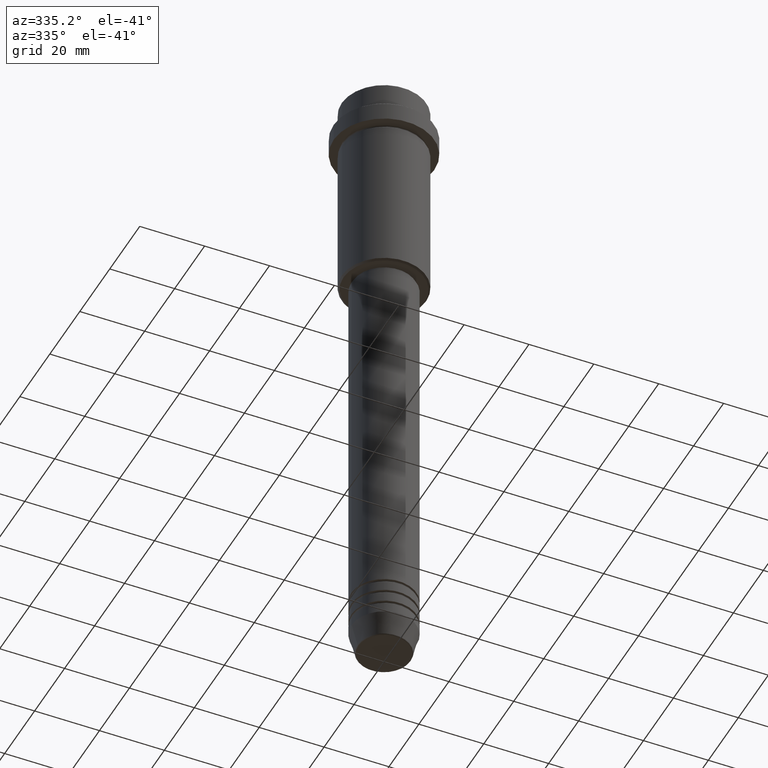
[diagram: clean part render]
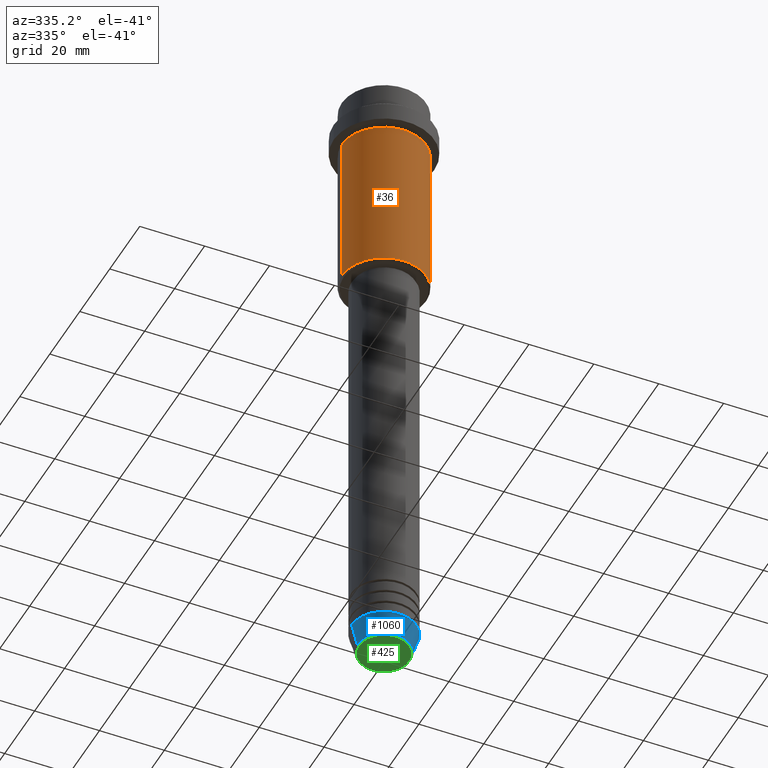
[diagram: same view with three faces highlighted in distinct colors, each labeled with its STEP entity id]
A machine part, auxiliary view with three faces highlighted in distinct colors.
Their STEP definitions:

[orange] entity #36 — the highlighted cylindrical surface (partial cylindrical patch) has radius 13 mm, axis along (-0, -0, 1).
#36 = ADVANCED_FACE ( 'NONE', ( #59 ), #940, .T. ) ;
#42 = EDGE_CURVE ( 'NONE', #437, #111, #584, .T. ) ;
#59 = FACE_OUTER_BOUND ( 'NONE', #1183, .T. ) ;
#111 = VERTEX_POINT ( 'NONE', #1099 ) ;
#112 = CARTESIAN_POINT ( 'NONE',  ( -13.00000000000000000, 1.592040838891559095E-15, 0.000000000000000000 ) ) ;
#156 = EDGE_CURVE ( 'NONE', #617, #437, #1175, .T. ) ;
#172 = CARTESIAN_POINT ( 'NONE',  ( -13.00000000000000000, 1.592040838891559095E-15, -64.50000000000002842 ) ) ;
#174 = CARTESIAN_POINT ( 'NONE',  ( 13.00000000000000000, 0.000000000000000000, 0.000000000000000000 ) ) ;
#281 = CARTESIAN_POINT ( 'NONE',  ( 13.00000000000000000, 0.000000000000000000, -64.50000000000002842 ) ) ;
#379 = VECTOR ( 'NONE', #1082, 1000.000000000000000 ) ;
#394 = DIRECTION ( 'NONE',  ( 1.000000000000000000, 0.000000000000000000, 0.000000000000000000 ) ) ;
#437 = VERTEX_POINT ( 'NONE', #1259 ) ;
#471 = VECTOR ( 'NONE', #1145, 1000.000000000000000 ) ;
#486 = DIRECTION ( 'NONE',  ( -0.000000000000000000, -0.000000000000000000, 1.000000000000000000 ) ) ;
#552 = ORIENTED_EDGE ( 'NONE', *, *, #156, .F. ) ;
#584 = CIRCLE ( 'NONE', #677, 13.00000000000000000 ) ;
#617 = VERTEX_POINT ( 'NONE', #172 ) ;
#677 = AXIS2_PLACEMENT_3D ( 'NONE', #1256, #928, #394 ) ;
#679 = EDGE_CURVE ( 'NONE', #617, #1105, #743, .T. ) ;
#743 = CIRCLE ( 'NONE', #1070, 13.00000000000000000 ) ;
#752 = ORIENTED_EDGE ( 'NONE', *, *, #1150, .T. ) ;
#791 = AXIS2_PLACEMENT_3D ( 'NONE', #1375, #486, #1169 ) ;
#813 = ORIENTED_EDGE ( 'NONE', *, *, #42, .F. ) ;
#883 = ORIENTED_EDGE ( 'NONE', *, *, #679, .T. ) ;
#928 = DIRECTION ( 'NONE',  ( -0.000000000000000000, -0.000000000000000000, 1.000000000000000000 ) ) ;
#940 = CYLINDRICAL_SURFACE ( 'NONE', #791, 13.00000000000000000 ) ;
#1063 = LINE ( 'NONE', #174, #471 ) ;
#1070 = AXIS2_PLACEMENT_3D ( 'NONE', #1383, #1377, #1153 ) ;
#1082 = DIRECTION ( 'NONE',  ( -0.000000000000000000, -0.000000000000000000, 1.000000000000000000 ) ) ;
#1099 = CARTESIAN_POINT ( 'NONE',  ( 13.00000000000000000, 0.000000000000000000, -16.00000000000000000 ) ) ;
#1105 = VERTEX_POINT ( 'NONE', #281 ) ;
#1145 = DIRECTION ( 'NONE',  ( -0.000000000000000000, -0.000000000000000000, 1.000000000000000000 ) ) ;
#1150 = EDGE_CURVE ( 'NONE', #1105, #111, #1063, .T. ) ;
#1153 = DIRECTION ( 'NONE',  ( -1.000000000000000000, 0.000000000000000000, 0.000000000000000000 ) ) ;
#1169 = DIRECTION ( 'NONE',  ( 1.000000000000000000, 0.000000000000000000, 0.000000000000000000 ) ) ;
#1175 = LINE ( 'NONE', #112, #379 ) ;
#1183 = EDGE_LOOP ( 'NONE', ( #552, #883, #752, #813 ) ) ;
#1256 = CARTESIAN_POINT ( 'NONE',  ( 0.000000000000000000, 0.000000000000000000, -16.00000000000000000 ) ) ;
#1259 = CARTESIAN_POINT ( 'NONE',  ( -13.00000000000000000, 1.592040838891559095E-15, -16.00000000000000000 ) ) ;
#1375 = CARTESIAN_POINT ( 'NONE',  ( 0.000000000000000000, 0.000000000000000000, 0.000000000000000000 ) ) ;
#1377 = DIRECTION ( 'NONE',  ( -0.000000000000000000, -0.000000000000000000, 1.000000000000000000 ) ) ;
#1383 = CARTESIAN_POINT ( 'NONE',  ( 0.000000000000000000, 0.000000000000000000, -64.50000000000002842 ) ) ;

[blue] entity #1060 — the highlighted conical surface has half-angle 15 deg.
#52 = EDGE_CURVE ( 'NONE', #655, #718, #1363, .T. ) ;
#62 = CARTESIAN_POINT ( 'NONE',  ( -10.00000000000000000, 1.224646799147353256E-15, -193.0000000000000000 ) ) ;
#78 = CARTESIAN_POINT ( 'NONE',  ( 8.223655072137191269, 0.000000000000000000, -199.6294095225512706 ) ) ;
#136 = DIRECTION ( 'NONE',  ( 1.000000000000000000, 0.000000000000000000, 0.000000000000000000 ) ) ;
#137 = VECTOR ( 'NONE', #831, 1000.000000000000000 ) ;
#181 = DIRECTION ( 'NONE',  ( -0.000000000000000000, -0.000000000000000000, 1.000000000000000000 ) ) ;
#230 = DIRECTION ( 'NONE',  ( -0.000000000000000000, -0.000000000000000000, 1.000000000000000000 ) ) ;
#302 = CARTESIAN_POINT ( 'NONE',  ( 0.000000000000000000, 0.000000000000000000, -193.0000000000000000 ) ) ;
#344 = AXIS2_PLACEMENT_3D ( 'NONE', #302, #230, #853 ) ;
#354 = DIRECTION ( 'NONE',  ( -0.000000000000000000, -0.000000000000000000, 1.000000000000000000 ) ) ;
#368 = VERTEX_POINT ( 'NONE', #413 ) ;
#396 = CARTESIAN_POINT ( 'NONE',  ( 10.00000000000000000, 0.000000000000000000, -193.0000000000000000 ) ) ;
#413 = CARTESIAN_POINT ( 'NONE',  ( -10.00000000000000000, 1.224646799147353256E-15, -193.0000000000000000 ) ) ;
#521 = AXIS2_PLACEMENT_3D ( 'NONE', #1058, #181, #1044 ) ;
#655 = VERTEX_POINT ( 'NONE', #78 ) ;
#685 = VERTEX_POINT ( 'NONE', #839 ) ;
#688 = EDGE_CURVE ( 'NONE', #685, #368, #1276, .T. ) ;
#718 = VERTEX_POINT ( 'NONE', #396 ) ;
#733 = ORIENTED_EDGE ( 'NONE', *, *, #52, .T. ) ;
#775 = CIRCLE ( 'NONE', #344, 10.00000000000000000 ) ;
#827 = DIRECTION ( 'NONE',  ( -0.2588190451025213501, 3.169619151431772337E-17, 0.9659258262890680902 ) ) ;
#831 = DIRECTION ( 'NONE',  ( 0.2588190451025213501, 0.000000000000000000, 0.9659258262890680902 ) ) ;
#839 = CARTESIAN_POINT ( 'NONE',  ( -8.223655072137191269, 1.115877042642912054E-15, -199.6294095225512706 ) ) ;
#853 = DIRECTION ( 'NONE',  ( 1.000000000000000000, 0.000000000000000000, 0.000000000000000000 ) ) ;
#872 = AXIS2_PLACEMENT_3D ( 'NONE', #1336, #354, #136 ) ;
#882 = ORIENTED_EDGE ( 'NONE', *, *, #1316, .F. ) ;
#945 = CARTESIAN_POINT ( 'NONE',  ( 10.00000000000000000, 0.000000000000000000, -193.0000000000000000 ) ) ;
#984 = ORIENTED_EDGE ( 'NONE', *, *, #688, .F. ) ;
#1036 = EDGE_CURVE ( 'NONE', #685, #655, #1139, .T. ) ;
#1044 = DIRECTION ( 'NONE',  ( 1.000000000000000000, 0.000000000000000000, 0.000000000000000000 ) ) ;
#1058 = CARTESIAN_POINT ( 'NONE',  ( 0.000000000000000000, 0.000000000000000000, -193.0000000000000000 ) ) ;
#1060 = ADVANCED_FACE ( 'NONE', ( #1137 ), #1211, .T. ) ;
#1118 = VECTOR ( 'NONE', #827, 1000.000000000000000 ) ;
#1137 = FACE_OUTER_BOUND ( 'NONE', #1313, .T. ) ;
#1139 = CIRCLE ( 'NONE', #872, 8.223655072137191269 ) ;
#1211 = CONICAL_SURFACE ( 'NONE', #521, 10.00000000000000000, 0.2617993877991500740 ) ;
#1276 = LINE ( 'NONE', #62, #1118 ) ;
#1280 = ORIENTED_EDGE ( 'NONE', *, *, #1036, .T. ) ;
#1313 = EDGE_LOOP ( 'NONE', ( #984, #1280, #733, #882 ) ) ;
#1316 = EDGE_CURVE ( 'NONE', #368, #718, #775, .T. ) ;
#1336 = CARTESIAN_POINT ( 'NONE',  ( 0.000000000000000000, 0.000000000000000000, -199.6294095225512706 ) ) ;
#1363 = LINE ( 'NONE', #945, #137 ) ;

[green] entity #425 — the highlighted planar face has unit normal (0, -0, 1).
#106 = CARTESIAN_POINT ( 'NONE',  ( 0.000000000000000000, 0.000000000000000000, -200.0000000000000000 ) ) ;
#148 = EDGE_CURVE ( 'NONE', #290, #829, #633, .T. ) ;
#166 = DIRECTION ( 'NONE',  ( 0.000000000000000000, -0.000000000000000000, 1.000000000000000000 ) ) ;
#178 = CIRCLE ( 'NONE', #1389, 7.740692158992658278 ) ;
#201 = DIRECTION ( 'NONE',  ( 0.000000000000000000, 0.000000000000000000, -1.000000000000000000 ) ) ;
#288 = CARTESIAN_POINT ( 'NONE',  ( 0.000000000000000000, 0.000000000000000000, -200.0000000000000000 ) ) ;
#290 = VERTEX_POINT ( 'NONE', #807 ) ;
#365 = EDGE_CURVE ( 'NONE', #829, #290, #178, .T. ) ;
#425 = ADVANCED_FACE ( 'NONE', ( #701 ), #1141, .F. ) ;
#503 = EDGE_LOOP ( 'NONE', ( #1328, #630 ) ) ;
#630 = ORIENTED_EDGE ( 'NONE', *, *, #365, .T. ) ;
#633 = CIRCLE ( 'NONE', #1050, 7.740692158992658278 ) ;
#701 = FACE_OUTER_BOUND ( 'NONE', #503, .T. ) ;
#807 = CARTESIAN_POINT ( 'NONE',  ( 7.740692158992658278, 0.000000000000000000, -200.0000000000000000 ) ) ;
#829 = VERTEX_POINT ( 'NONE', #1416 ) ;
#842 = AXIS2_PLACEMENT_3D ( 'NONE', #1147, #166, #933 ) ;
#933 = DIRECTION ( 'NONE',  ( 1.000000000000000000, 0.000000000000000000, 0.000000000000000000 ) ) ;
#1050 = AXIS2_PLACEMENT_3D ( 'NONE', #106, #201, #1286 ) ;
#1080 = DIRECTION ( 'NONE',  ( 0.000000000000000000, 0.000000000000000000, -1.000000000000000000 ) ) ;
#1141 = PLANE ( 'NONE',  #842 ) ;
#1147 = CARTESIAN_POINT ( 'NONE',  ( 0.000000000000000000, 0.000000000000000000, -200.0000000000000000 ) ) ;
#1182 = DIRECTION ( 'NONE',  ( 1.000000000000000000, 0.000000000000000000, 0.000000000000000000 ) ) ;
#1286 = DIRECTION ( 'NONE',  ( 1.000000000000000000, 0.000000000000000000, 0.000000000000000000 ) ) ;
#1328 = ORIENTED_EDGE ( 'NONE', *, *, #148, .T. ) ;
#1389 = AXIS2_PLACEMENT_3D ( 'NONE', #288, #1080, #1182 ) ;
#1416 = CARTESIAN_POINT ( 'NONE',  ( -7.740692158992658278, 9.775343368540041107E-16, -200.0000000000000000 ) ) ;